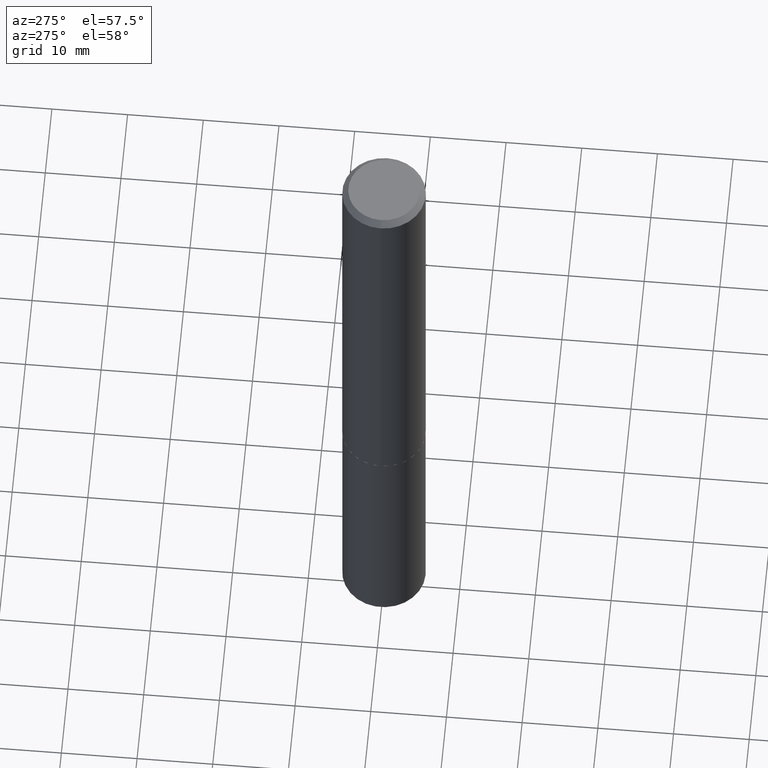
[diagram: clean part render]
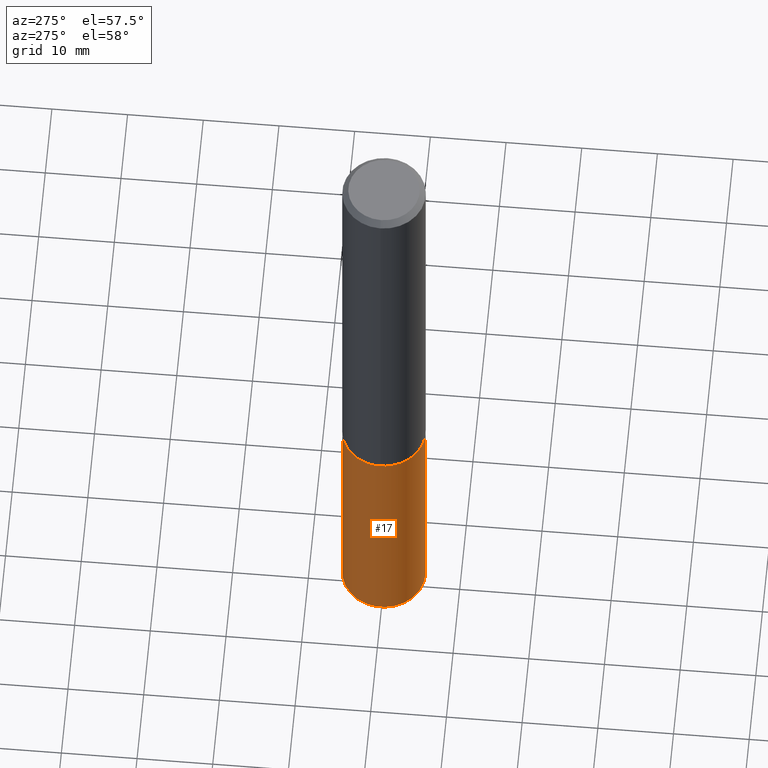
[diagram: same view with one face highlighted and labeled with its STEP entity id]
A machine part, auxiliary view. The second image highlights one B-rep face of the part: STEP entity #17.
In plain terms, the highlighted cylindrical surface (partial cylindrical patch) has radius 5.5004 mm, axis along (-0, 0, 1).
Its self-contained STEP definition (entity closure, byte-faithful):
#17 = ADVANCED_FACE ( 'NONE', ( #192 ), #374, .T. ) ;
#27 = VECTOR ( 'NONE', #322, 39.37007874015748143 ) ;
#51 = EDGE_CURVE ( 'NONE', #183, #341, #172, .T. ) ;
#52 = CARTESIAN_POINT ( 'NONE',  ( 1.538680294288586829E-15, 0.2165499999999918879, -2.322900000000001075 ) ) ;
#57 = ORIENTED_EDGE ( 'NONE', *, *, #51, .F. ) ;
#63 = VERTEX_POINT ( 'NONE', #274 ) ;
#69 = VERTEX_POINT ( 'NONE', #369 ) ;
#75 = DIRECTION ( 'NONE',  ( -6.982962677686265133E-15, -1.000000000000000000, 3.784596620176766988E-15 ) ) ;
#90 = CARTESIAN_POINT ( 'NONE',  ( 9.004812934248602542E-29, -1.285600773338433717E-14, -3.682175602379041734 ) ) ;
#96 = DIRECTION ( 'NONE',  ( -2.445591930395119820E-29, 3.491305017966654649E-15, 1.000000000000000000 ) ) ;
#109 = DIRECTION ( 'NONE',  ( -2.445591930395119820E-29, 3.491305017966654649E-15, 1.000000000000000000 ) ) ;
#110 = EDGE_LOOP ( 'NONE', ( #365, #390, #386, #57 ) ) ;
#112 = DIRECTION ( 'NONE',  ( -2.445591930395119820E-29, 3.491305017966654254E-15, 1.000000000000000000 ) ) ;
#140 = VECTOR ( 'NONE', #112, 39.37007874015748143 ) ;
#159 = EDGE_CURVE ( 'NONE', #69, #183, #288, .T. ) ;
#172 = CIRCLE ( 'NONE', #312, 0.2165500000000000203 ) ;
#183 = VERTEX_POINT ( 'NONE', #52 ) ;
#190 = DIRECTION ( 'NONE',  ( -6.982962677686265133E-15, -1.000000000000000000, 3.784596620176766988E-15 ) ) ;
#192 = FACE_OUTER_BOUND ( 'NONE', #110, .T. ) ;
#207 = DIRECTION ( 'NONE',  ( -6.982962677686265133E-15, -1.000000000000000000, 2.523064413451178124E-15 ) ) ;
#218 = CARTESIAN_POINT ( 'NONE',  ( 5.680579489887453942E-29, -8.110362001998743924E-15, -2.322900000000000187 ) ) ;
#224 = CARTESIAN_POINT ( 'NONE',  ( 1.538680294288553500E-15, 0.2165499999999918879, -2.322900000000001075 ) ) ;
#237 = AXIS2_PLACEMENT_3D ( 'NONE', #90, #109, #207 ) ;
#249 = CIRCLE ( 'NONE', #237, 0.2165500000000000203 ) ;
#254 = AXIS2_PLACEMENT_3D ( 'NONE', #218, #96, #75 ) ;
#274 = CARTESIAN_POINT ( 'NONE',  ( -1.512160567852871090E-15, -0.2165500000000128711, -3.682175602379041290 ) ) ;
#288 = LINE ( 'NONE', #224, #27 ) ;
#312 = AXIS2_PLACEMENT_3D ( 'NONE', #337, #345, #190 ) ;
#322 = DIRECTION ( 'NONE',  ( -2.445591930395119820E-29, 3.491305017966654254E-15, 1.000000000000000000 ) ) ;
#333 = CARTESIAN_POINT ( 'NONE',  ( -1.512160567852904222E-15, -0.2165500000000081249, -2.322899999999999299 ) ) ;
#337 = CARTESIAN_POINT ( 'NONE',  ( 5.680579489887453942E-29, -8.110362001998743924E-15, -2.322900000000000187 ) ) ;
#341 = VERTEX_POINT ( 'NONE', #384 ) ;
#345 = DIRECTION ( 'NONE',  ( -2.445591930395119820E-29, 3.491305017966654649E-15, 1.000000000000000000 ) ) ;
#360 = EDGE_CURVE ( 'NONE', #69, #63, #249, .T. ) ;
#363 = LINE ( 'NONE', #333, #140 ) ;
#365 = ORIENTED_EDGE ( 'NONE', *, *, #159, .F. ) ;
#369 = CARTESIAN_POINT ( 'NONE',  ( 1.538680294288587027E-15, 0.2165499999999871972, -3.682175602379042179 ) ) ;
#374 = CYLINDRICAL_SURFACE ( 'NONE', #254, 0.2165500000000000203 ) ;
#380 = EDGE_CURVE ( 'NONE', #63, #341, #363, .T. ) ;
#384 = CARTESIAN_POINT ( 'NONE',  ( -1.512160567852904222E-15, -0.2165500000000081249, -2.322899999999999299 ) ) ;
#386 = ORIENTED_EDGE ( 'NONE', *, *, #380, .T. ) ;
#390 = ORIENTED_EDGE ( 'NONE', *, *, #360, .T. ) ;